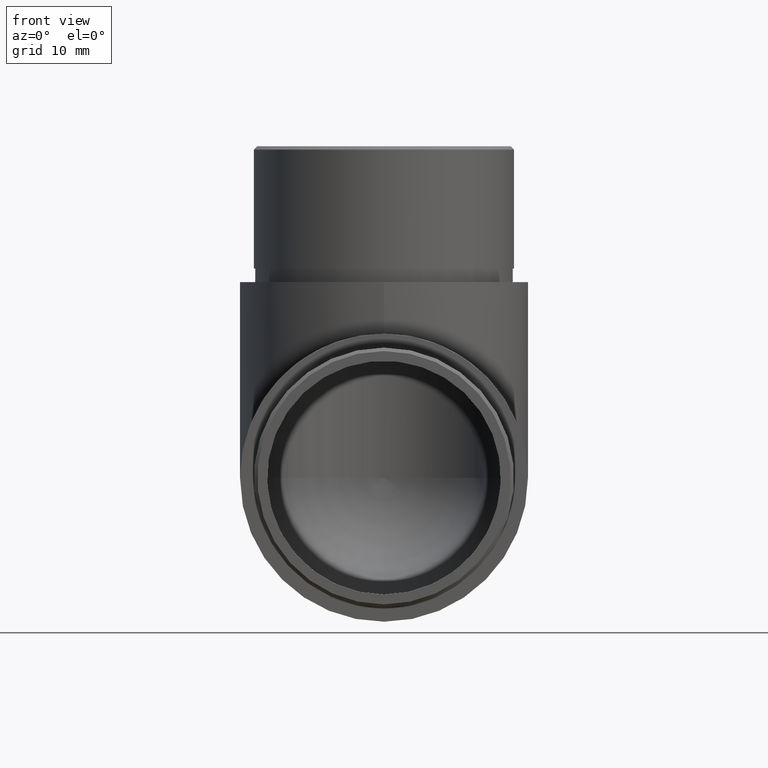
[diagram: clean part render]
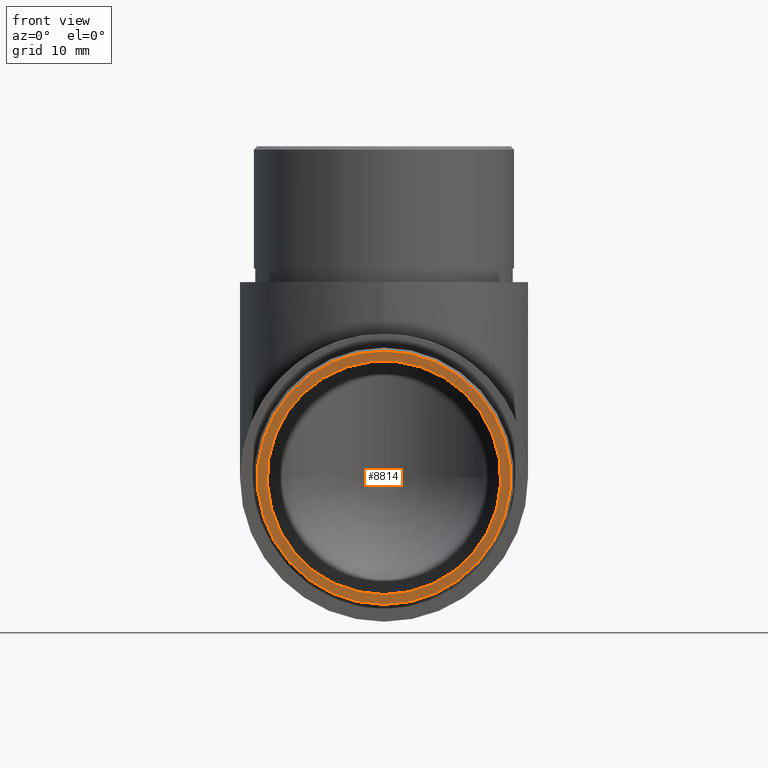
[diagram: same view with one face highlighted and labeled with its STEP entity id]
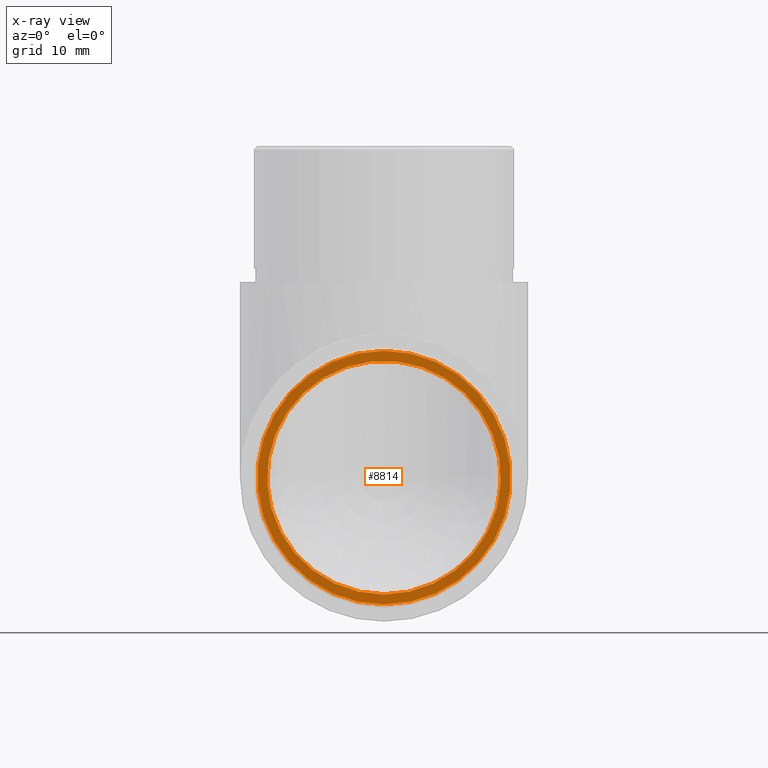
[diagram: x-ray of the same camera — body ghosted, the highlighted face saturated]
A machine part, front view. The second image highlights one B-rep face of the part: STEP entity #8814.
The next image is the same camera in x-ray: the body ghosted, the highlighted face saturated — about 0% of this face is hidden behind the body in this view.
In plain terms, the highlighted planar face has unit normal (0, -1, 0).
Its self-contained STEP definition (entity closure, byte-faithful):
#72 = DIRECTION ( 'NONE',  ( 0.0000000000000000000, -1.000000000000000000, 0.0000000000000000000 ) ) ;
#1298 = DIRECTION ( 'NONE',  ( 0.0000000000000000000, -1.000000000000000000, 0.0000000000000000000 ) ) ;
#2028 = CIRCLE ( 'NONE', #7563, 17.20000000000000600 ) ;
#2765 = EDGE_LOOP ( 'NONE', ( #6516 ) ) ;
#3042 = CARTESIAN_POINT ( 'NONE',  ( 0.0000000000000000000, -19.99999999999999600, 21.20000000000000300 ) ) ;
#3267 = CARTESIAN_POINT ( 'NONE',  ( 0.0000000000000000000, -19.99999999999999600, 21.20000000000000300 ) ) ;
#3315 = CIRCLE ( 'NONE', #4443, 18.64999999999998100 ) ;
#3709 = FACE_OUTER_BOUND ( 'NONE', #2765, .T. ) ;
#3847 = EDGE_CURVE ( 'NONE', #6811, #6811, #3315, .T. ) ;
#3911 = DIRECTION ( 'NONE',  ( 0.0000000000000000000, 0.0000000000000000000, -1.000000000000000000 ) ) ;
#4220 = DIRECTION ( 'NONE',  ( 0.0000000000000000000, -0.0000000000000000000, -1.000000000000000000 ) ) ;
#4443 = AXIS2_PLACEMENT_3D ( 'NONE', #3042, #72, #3911 ) ;
#4652 = DIRECTION ( 'NONE',  ( 0.0000000000000000000, 0.0000000000000000000, -1.000000000000000000 ) ) ;
#4692 = ORIENTED_EDGE ( 'NONE', *, *, #11624, .F. ) ;
#6516 = ORIENTED_EDGE ( 'NONE', *, *, #3847, .T. ) ;
#6811 = VERTEX_POINT ( 'NONE', #7099 ) ;
#7099 = CARTESIAN_POINT ( 'NONE',  ( 0.0000000000000000000, -19.99999999999999600, 2.550000000000024700 ) ) ;
#7107 = PLANE ( 'NONE',  #7852 ) ;
#7145 = FACE_BOUND ( 'NONE', #9281, .T. ) ;
#7563 = AXIS2_PLACEMENT_3D ( 'NONE', #9343, #8512, #4652 ) ;
#7852 = AXIS2_PLACEMENT_3D ( 'NONE', #3267, #1298, #4220 ) ;
#8512 = DIRECTION ( 'NONE',  ( 0.0000000000000000000, -1.000000000000000000, 0.0000000000000000000 ) ) ;
#8566 = VERTEX_POINT ( 'NONE', #11940 ) ;
#8814 = ADVANCED_FACE ( 'NONE', ( #3709, #7145 ), #7107, .T. ) ;
#9281 = EDGE_LOOP ( 'NONE', ( #4692 ) ) ;
#9343 = CARTESIAN_POINT ( 'NONE',  ( 0.0000000000000000000, -19.99999999999999600, 21.20000000000000300 ) ) ;
#11624 = EDGE_CURVE ( 'NONE', #8566, #8566, #2028, .T. ) ;
#11940 = CARTESIAN_POINT ( 'NONE',  ( 0.0000000000000000000, -19.99999999999999600, 3.999999999999996400 ) ) ;